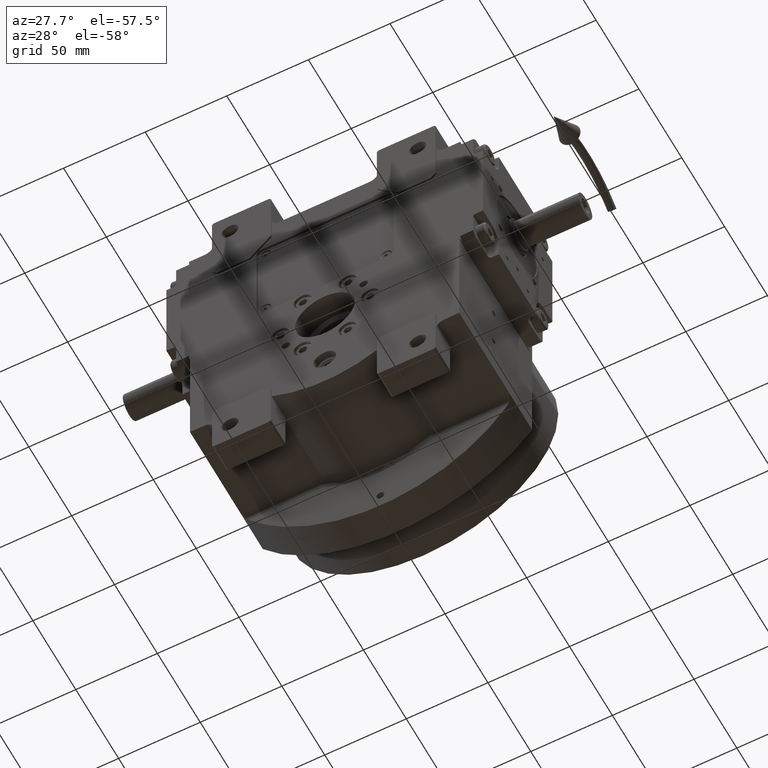
[diagram: clean part render]
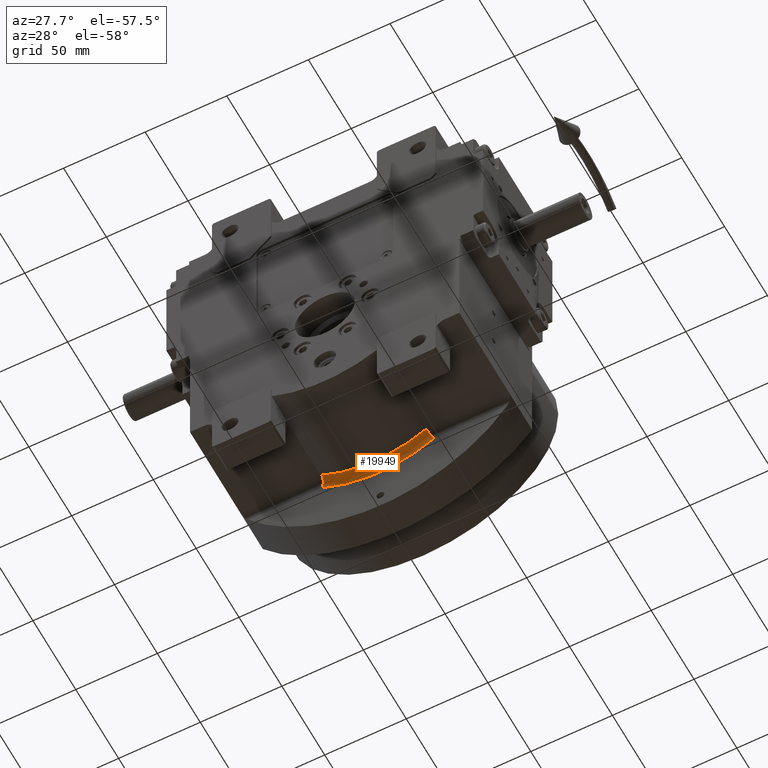
[diagram: same view with one face highlighted and labeled with its STEP entity id]
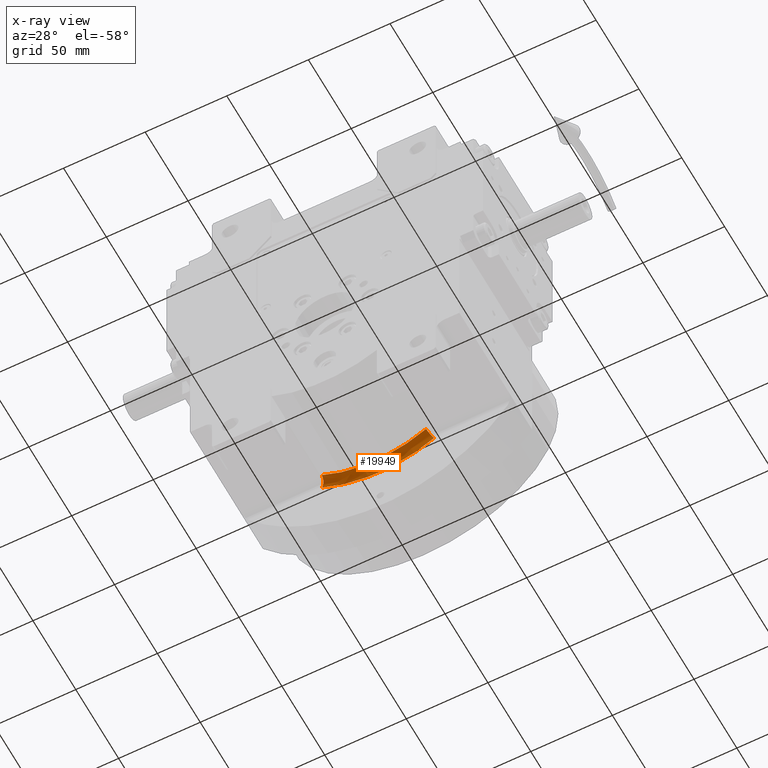
[diagram: x-ray of the same camera — body ghosted, the highlighted face saturated]
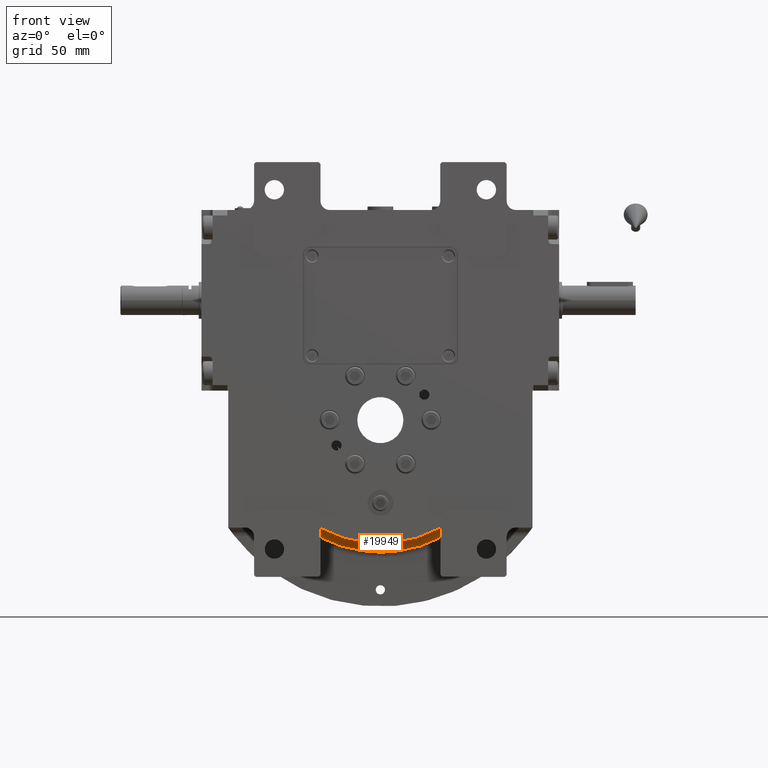
[diagram: same view with one face highlighted and labeled with its STEP entity id]
A machine part, auxiliary view. The second image highlights one B-rep face of the part: STEP entity #19949.
The next image is the same camera in x-ray: the body ghosted, the highlighted face saturated — about 0% of this face is hidden behind the body in this view.
A second angle (front view) of the same face is appended — the face is thin or edge-on in the first view.
In plain terms, the highlighted face is a freeform B-spline surface patch.
Its self-contained STEP definition (entity closure, byte-faithful):
#46 = CARTESIAN_POINT ( 'NONE',  ( 33.89316598205211761, 21.72079560458065117, -61.95847620662187438 ) ) ;
#188 = CARTESIAN_POINT ( 'NONE',  ( 25.60877324666465071, 22.27561228193904697, -67.13024366902838835 ) ) ;
#257 = EDGE_LOOP ( 'NONE', ( #39022, #22823, #12857, #63094 ) ) ;
#395 = CARTESIAN_POINT ( 'NONE',  ( 32.72256152614408364, 20.25982518854230108, -59.93185774238567376 ) ) ;
#1582 = CARTESIAN_POINT ( 'NONE',  ( -5.356016771387229980, 22.67353917850849854, -71.68136855480990732 ) ) ;
#2148 = VERTEX_POINT ( 'NONE', #54044 ) ;
#3142 = CARTESIAN_POINT ( 'NONE',  ( 15.47723018580565046, 22.20135186317695286, -68.51182380416469186 ) ) ;
#3487 = CARTESIAN_POINT ( 'NONE',  ( -33.58176427588125534, 21.56462997241844803, -61.39902517405529636 ) ) ;
#3790 = EDGE_CURVE ( 'NONE', #56593, #30874, #62354, .T. ) ;
#4337 = CARTESIAN_POINT ( 'NONE',  ( 23.47303169947996793, 22.32516175910221179, -67.69612524278177546 ) ) ;
#4667 = CARTESIAN_POINT ( 'NONE',  ( 33.43345245199208904, 21.34838968287522221, -61.14495112640866381 ) ) ;
#4810 = CARTESIAN_POINT ( 'NONE',  ( -14.78875358798659789, 18.38516779463245143, -65.59621327763490228 ) ) ;
#5020 = CARTESIAN_POINT ( 'NONE',  ( 32.20253065353806221, 18.66693435054510886, -59.11412820604594032 ) ) ;
#5039 = CARTESIAN_POINT ( 'NONE',  ( 29.04086476617816714, 22.13437532320985923, -65.51542630187469740 ) ) ;
#5148 = CARTESIAN_POINT ( 'NONE',  ( 23.94370797182140009, 18.94735996923695254, -63.03005720894730501 ) ) ;
#5367 = CARTESIAN_POINT ( 'NONE',  ( 33.34968649446624056, 21.25690745240459378, -60.99867444786077186 ) ) ;
#5510 = CARTESIAN_POINT ( 'NONE',  ( 5.080498079819370183, 21.43171770608825000, -68.64619728877529781 ) ) ;
#6939 = CARTESIAN_POINT ( 'NONE',  ( 31.98743443817719623, 16.91834202203235193, -58.87106939620260704 ) ) ;
#7422 = CARTESIAN_POINT ( 'NONE',  ( -32.01794541995315058, 17.75200655075800782, -58.85445774190699098 ) ) ;
#8113 = FACE_OUTER_BOUND ( 'NONE', #257, .T. ) ;
#8443 = CARTESIAN_POINT ( 'NONE',  ( -5.232313598796380028, 22.33856116847615070, -70.04518290873480169 ) ) ;
#8794 = CARTESIAN_POINT ( 'NONE',  ( -25.04405692028204911, 21.93979951944659845, -65.58923440282170247 ) ) ;
#9150 = CARTESIAN_POINT ( 'NONE',  ( -5.122250627365549924, 21.43143416067259821, -68.64309445080189676 ) ) ;
#9621 = CARTESIAN_POINT ( 'NONE',  ( 33.49596927411045044, 21.41148316958645736, -61.25452229406503335 ) ) ;
#9638 = CARTESIAN_POINT ( 'NONE',  ( -11.90248989745663444, 22.58241322724574474, -70.63652297862456919 ) ) ;
#10018 = B_SPLINE_CURVE_WITH_KNOTS ( 'NONE', 3,
 ( #56036, #7422, #61699, #13106, #34723, #56389, #29382, #36813 ),
 .UNSPECIFIED., .F., .F.,
 ( 4, 2, 2, 4 ),
 ( 0.000000000000000000, 0.3333333333333335924, 0.6666666666666671848, 1.000000000000000000 ),
 .UNSPECIFIED. ) ;
#10493 = CARTESIAN_POINT ( 'NONE',  ( -31.28692157794700535, 21.96561102192774939, -63.56940012490900926 ) ) ;
#10704 = CARTESIAN_POINT ( 'NONE',  ( 32.21062267453432071, 18.70415746839778848, -59.12576714756355756 ) ) ;
#10836 = CARTESIAN_POINT ( 'NONE',  ( -14.77288166437734063, 17.55090800214700053, -65.59925740921940474 ) ) ;
#11884 = CARTESIAN_POINT ( 'NONE',  ( 15.84304983925120069, 22.53627425432280162, -70.11133706324248749 ) ) ;
#12631 = CARTESIAN_POINT ( 'NONE',  ( 4.939540285032240519, 17.68847108994751594, -67.06237765336878454 ) ) ;
#12857 = ORIENTED_EDGE ( 'NONE', *, *, #54115, .F. ) ;
#12964 = CARTESIAN_POINT ( 'NONE',  ( -14.77288173921127701, 17.55091193554919471, -65.59925739486833152 ) ) ;
#13092 = CARTESIAN_POINT ( 'NONE',  ( 4.939540259446429715, 17.68846715588675167, -67.06237765273100138 ) ) ;
#13106 = CARTESIAN_POINT ( 'NONE',  ( -32.58211291903631945, 20.03721089980311731, -59.69284975760209733 ) ) ;
#13803 = CARTESIAN_POINT ( 'NONE',  ( 32.58211394110570325, 20.03721122118130182, -59.69285158621150345 ) ) ;
#14134 = CARTESIAN_POINT ( 'NONE',  ( 29.99084088730355191, 20.16771084712490136, -61.10706471000440132 ) ) ;
#14489 = CARTESIAN_POINT ( 'NONE',  ( -29.48146737460379896, 17.88159068325219891, -60.23419211705630261 ) ) ;
#15304 = CARTESIAN_POINT ( 'NONE',  ( 33.85713766137644853, 21.69930227409577128, -61.89403531663299418 ) ) ;
#15667 = CARTESIAN_POINT ( 'NONE',  ( 33.55919131906695441, 21.47314760397791389, -61.36548467847053701 ) ) ;
#15798 = CARTESIAN_POINT ( 'NONE',  ( 29.46960603675275081, 17.88219718071835018, -60.24064871479900773 ) ) ;
#16014 = CARTESIAN_POINT ( 'NONE',  ( 33.49901502991529156, 21.41446307854819153, -61.25986731557330245 ) ) ;
#16106 = EDGE_CURVE ( 'NONE', #2148, #56174, #62728, .T. ) ;
#16152 = CARTESIAN_POINT ( 'NONE',  ( 32.87977152734590192, 20.65830054632354873, -60.18633690520509560 ) ) ;
#16352 = CARTESIAN_POINT ( 'NONE',  ( 33.92535459463461223, 21.73912870223322003, -62.01611895463970825 ) ) ;
#16706 = CARTESIAN_POINT ( 'NONE',  ( 33.46693639570202805, 21.38264226011981961, -61.20360356247892497 ) ) ;
#16845 = CARTESIAN_POINT ( 'NONE',  ( 5.312359062531579745, 22.67382314555505118, -71.68461723454409196 ) ) ;
#17080 = CARTESIAN_POINT ( 'NONE',  ( -34.37448426114839606, 21.89931762037159757, -62.82870446426660749 ) ) ;
#18409 = CARTESIAN_POINT ( 'NONE',  ( 29.44072192283740108, 17.04841846181794907, -60.25462858127929877 ) ) ;
#19097 = CARTESIAN_POINT ( 'NONE',  ( 25.01775090583850059, 21.94079065737765077, -65.60031027760419420 ) ) ;
#19445 = CARTESIAN_POINT ( 'NONE',  ( 15.01361162066794996, 20.67284306709315089, -66.58199389556790493 ) ) ;
#19778 = CARTESIAN_POINT ( 'NONE',  ( 25.31111222606615030, 22.21174957585860099, -66.35048536335919778 ) ) ;
#19949 = ADVANCED_FACE ( 'NONE', ( #8113 ), #53821, .F. ) ;
#20618 = CARTESIAN_POINT ( 'NONE',  ( 32.64949430569751598, 20.09837154108942769, -59.81145617187603847 ) ) ;
#21101 = CARTESIAN_POINT ( 'NONE',  ( -32.14775138503180330, 18.57243314828215119, -59.02158094560640222 ) ) ;
#21190 = EDGE_CURVE ( 'NONE', #56174, #30874, #10018, .T. ) ;
#21448 = CARTESIAN_POINT ( 'NONE',  ( 5.189664148516230924, 22.33884502181484777, -70.04835568725430051 ) ) ;
#21666 = CARTESIAN_POINT ( 'NONE',  ( 33.73119429049442175, 21.61395435852485747, -61.66965452720889118 ) ) ;
#21808 = CARTESIAN_POINT ( 'NONE',  ( -15.88574857046580036, 22.53542943301765078, -70.10167552148800496 ) ) ;
#22006 = CARTESIAN_POINT ( 'NONE',  ( 32.02311471396220810, 17.52935285823654965, -58.88333062413673957 ) ) ;
#22142 = CARTESIAN_POINT ( 'NONE',  ( -31.65484861374630299, 22.02945599755280170, -64.31643460213680896 ) ) ;
#22823 = ORIENTED_EDGE ( 'NONE', *, *, #3790, .F. ) ;
#24737 = CARTESIAN_POINT ( 'NONE',  ( 23.84535878138364851, 18.12659505959519990, -62.84284412317220614 ) ) ;
#25096 = CARTESIAN_POINT ( 'NONE',  ( 33.58176531939849241, 21.56463036862644600, -61.39902706031460156 ) ) ;
#25917 = CARTESIAN_POINT ( 'NONE',  ( 32.28007184173921473, 19.01449822969751580, -59.22643570895439780 ) ) ;
#26283 = CARTESIAN_POINT ( 'NONE',  ( 32.35433031463118425, 19.28630331395154229, -59.33910833681502339 ) ) ;
#26416 = CARTESIAN_POINT ( 'NONE',  ( -25.33772548572940053, 22.21075815114509666, -66.33927685919370276 ) ) ;
#26611 = CARTESIAN_POINT ( 'NONE',  ( 33.76859029514489663, 21.64106143382714009, -61.73612088267417874 ) ) ;
#26630 = CARTESIAN_POINT ( 'NONE',  ( 20.63116238637816835, 22.40509573647655372, -68.60977478493825288 ) ) ;
#26753 = CARTESIAN_POINT ( 'NONE',  ( 14.81049246554406018, 19.20702028404180339, -65.80666838281179309 ) ) ;
#26975 = CARTESIAN_POINT ( 'NONE',  ( 32.08080791320756475, 17.98764634065216939, -58.94941265465860880 ) ) ;
#27114 = CARTESIAN_POINT ( 'NONE',  ( -30.00290205058615101, 20.16710264854260259, -61.10047760549640117 ) ) ;
#27843 = CARTESIAN_POINT ( 'NONE',  ( -4.980135495433235526, 17.68818881517152874, -67.05937529452785384 ) ) ;
#28553 = CARTESIAN_POINT ( 'NONE',  ( 29.44072205902208239, 17.04842239295195228, -60.25462851536783404 ) ) ;
#29133 = CARTESIAN_POINT ( 'NONE',  ( -34.37448426114839606, 21.89931762037159757, -62.82870446426660749 ) ) ;
#29382 = CARTESIAN_POINT ( 'NONE',  ( -33.97495222781908808, 21.83547720471467812, -62.09897149216929790 ) ) ;
#29725 = CARTESIAN_POINT ( 'NONE',  ( 31.98734971697150087, 16.91834084366389845, -58.87108418469269822 ) ) ;
#30051 = CARTESIAN_POINT ( 'NONE',  ( 24.49311927717645077, 21.03408714449059858, -64.29591374703228723 ) ) ;
#30413 = CARTESIAN_POINT ( 'NONE',  ( 30.91223167887569900, 21.69533666644165137, -62.85889895672319483 ) ) ;
#30764 = CARTESIAN_POINT ( 'NONE',  ( -5.293759152372389032, 22.60964664401005209, -70.84867779253190179 ) ) ;
#30874 = VERTEX_POINT ( 'NONE', #29133 ) ;
#30907 = CARTESIAN_POINT ( 'NONE',  ( -5.969118748666172536, 22.64733676919941985, -71.37860245883551613 ) ) ;
#31593 = CARTESIAN_POINT ( 'NONE',  ( 32.53370187337065289, 19.81285199359001936, -59.62319584522479943 ) ) ;
#31956 = CARTESIAN_POINT ( 'NONE',  ( 33.48383523637958348, 21.39952481451699740, -61.23323436435543243 ) ) ;
#32094 = CARTESIAN_POINT ( 'NONE',  ( -32.01794543039404317, 17.75200655022460339, -58.85445773622760157 ) ) ;
#32299 = CARTESIAN_POINT ( 'NONE',  ( 32.21505596508978897, 18.72422514810597960, -59.13217146334259411 ) ) ;
#32318 = CARTESIAN_POINT ( 'NONE',  ( -31.74689637493835548, 22.02422287345092755, -64.25637803985283369 ) ) ;
#32446 = CARTESIAN_POINT ( 'NONE',  ( -24.29570833834564780, 20.41175221617285018, -63.75167992997710087 ) ) ;
#33377 = CARTESIAN_POINT ( 'NONE',  ( -20.63116937147355046, 22.40509959465580891, -68.60981888412888452 ) ) ;
#34723 = CARTESIAN_POINT ( 'NONE',  ( -32.87977049551408726, 20.65830019473531820, -60.18633506172589165 ) ) ;
#35421 = CARTESIAN_POINT ( 'NONE',  ( -31.98734872618995340, 16.91834067345600090, -58.87108237431030489 ) ) ;
#35752 = CARTESIAN_POINT ( 'NONE',  ( 30.26533976592959974, 20.78888421055715341, -61.61440901042910667 ) ) ;
#36110 = CARTESIAN_POINT ( 'NONE',  ( -5.006512162622009932, 19.34373233567044892, -67.26863427106378879 ) ) ;
#36262 = CARTESIAN_POINT ( 'NONE',  ( 14.83576610642443683, 22.53395076200965974, -70.08259446625528710 ) ) ;
#36813 = CARTESIAN_POINT ( 'NONE',  ( -34.37448426114839606, 21.89931762037159757, -62.82870446426660749 ) ) ;
#37293 = CARTESIAN_POINT ( 'NONE',  ( 33.82720233730306347, 21.68015116134838749, -61.84060092327543146 ) ) ;
#37438 = CARTESIAN_POINT ( 'NONE',  ( 15.15200614646964894, 21.29437547240680217, -67.14350210244010952 ) ) ;
#37655 = CARTESIAN_POINT ( 'NONE',  ( 33.91934743153302634, 21.73576831729242897, -62.00535665183546286 ) ) ;
#37791 = CARTESIAN_POINT ( 'NONE',  ( 4.965702433001919935, 19.34401517241849788, -67.27165907835350822 ) ) ;
#37989 = CARTESIAN_POINT ( 'NONE',  ( 32.74046267663956655, 20.29774043094684899, -59.96149064735983814 ) ) ;
#38007 = CARTESIAN_POINT ( 'NONE',  ( -29.04105011325574992, 22.13437318037911794, -65.51540180920734713 ) ) ;
#38332 = CARTESIAN_POINT ( 'NONE',  ( 32.73328586040518928, 20.28259200613085511, -59.94960616786701735 ) ) ;
#38479 = CARTESIAN_POINT ( 'NONE',  ( -34.37448426115155087, 21.89931358665204897, -62.82870481713079158 ) ) ;
#39022 = ORIENTED_EDGE ( 'NONE', *, *, #21190, .T. ) ;
#39210 = CARTESIAN_POINT ( 'NONE',  ( -29.45257542784745652, 17.04781651606748127, -60.24818422784169769 ) ) ;
#40050 = CARTESIAN_POINT ( 'NONE',  ( 23.82086320050884964, 17.29258541188589859, -62.85166118683000036 ) ) ;
#40746 = CARTESIAN_POINT ( 'NONE',  ( -24.51887821482065277, 21.03309696621295188, -64.28508042708929793 ) ) ;
#41105 = CARTESIAN_POINT ( 'NONE',  ( -30.27750872055215225, 20.78827554963325142, -61.60775735980099910 ) ) ;
#41240 = CARTESIAN_POINT ( 'NONE',  ( 5.969130634977448224, 22.64734071920593195, -71.37864760761658545 ) ) ;
#41433 = CARTESIAN_POINT ( 'NONE',  ( 15.65889487797699964, 22.47239232837635114, -69.29690724126749046 ) ) ;
#42274 = CARTESIAN_POINT ( 'NONE',  ( 34.22504648665845650, 21.87552267231701464, -62.55672696553510548 ) ) ;
#42615 = CARTESIAN_POINT ( 'NONE',  ( 32.84356451004986610, 20.51291761275329151, -60.13242002078200699 ) ) ;
#42759 = CARTESIAN_POINT ( 'NONE',  ( 34.37448425976209876, 21.89931667216864852, -62.82870454466170429 ) ) ;
#42765 = CARTESIAN_POINT ( 'NONE',  ( -15.19284511144029892, 21.29353192454400201, -67.13427375725019886 ) ) ;
#42976 = CARTESIAN_POINT ( 'NONE',  ( 34.07635742203913765, 21.82262469278764527, -62.28672716919844987 ) ) ;
#43115 = CARTESIAN_POINT ( 'NONE',  ( -4.980135469638319989, 17.68818488111210030, -67.05937529392119245 ) ) ;
#43332 = CARTESIAN_POINT ( 'NONE',  ( 33.90884330140355729, 21.72980709277304356, -61.98654436986177529 ) ) ;
#43842 = CARTESIAN_POINT ( 'NONE',  ( 23.82086331600217122, 17.29258934410870197, -62.85166114526040104 ) ) ;
#44198 = CARTESIAN_POINT ( 'NONE',  ( 14.73316218924969867, 17.55175164572757396, -65.60818880316627144 ) ) ;
#44394 = CARTESIAN_POINT ( 'NONE',  ( -23.47284083894535911, 22.32516390193326572, -67.69614973545274950 ) ) ;
#46393 = CARTESIAN_POINT ( 'NONE',  ( 14.74899353304840055, 18.38600836025720042, -65.60516387452921094 ) ) ;
#46750 = CARTESIAN_POINT ( 'NONE',  ( -23.96890041528294901, 18.94637199954769713, -63.01949236013039268 ) ) ;
#48052 = CARTESIAN_POINT ( 'NONE',  ( -23.84593569003270019, 17.29159919360714781, -62.84117147466660924 ) ) ;
#48265 = CARTESIAN_POINT ( 'NONE',  ( 32.14281245953367971, 18.36695712941077119, -59.03041155637551185 ) ) ;
#48268 = B_SPLINE_CURVE_WITH_KNOTS ( 'NONE', 3,
 ( #69209, #59312, #22006, #26975, #48981, #48265, #69550, #58958, #5020, #10704, #32299, #25917, #26283, #64946, #31593, #65279, #20618, #63893, #395, #38332, #37989, #69899, #42615, #58604, #64593, #64249, #53945, #5367, #52890, #4667, #16706, #31956, #48625, #9621, #16014, #15667, #53609, #21666, #26611, #37293, #15304, #46, #43332, #37655, #16352, #42976, #42274, #59646 ),
 .UNSPECIFIED., .F., .F.,
 ( 4, 2, 2, 1, 1, 2, 2, 2, 2, 1, 1, 1, 2, 2, 2, 2, 2, 1, 1, 1, 2, 2, 2, 2, 1, 1, 2, 2, 4 ),
 ( 0.000000000000000000, 0.1249999999999205635, 0.1874999999998815392, 0.2187499999998619438, 0.2343749999998528122, 0.2421874999998485933, 0.2499999999998444022, 0.3749999999997710165, 0.4374999999997347122, 0.4687499999997153388, 0.4843749999997056244, 0.4921874999997002398, 0.4960937499996980748, 0.4999999999996959099, 0.6249999999996843636, 0.6874999999996797007, 0.7187499999996763700, 0.7343749999996745936, 0.7421874999996742606, 0.7460937499996737055, 0.7480468749996734834, 0.7499999999996732614, 0.8124999999997548628, 0.8437499999997970512, 0.8593749999998184785, 0.8671874999998295808, 0.8710937499998353539, 0.8749999999998410161, 1.000000000000000000 ),
 .UNSPECIFIED. ) ;
#48289 = CARTESIAN_POINT ( 'NONE',  ( 11.90248994995745058, 22.58240927723912250, -70.63647782984223511 ) ) ;
#48417 = CARTESIAN_POINT ( 'NONE',  ( 24.27018054425809979, 20.41274173681960136, -63.76240717643119638 ) ) ;
#48625 = CARTESIAN_POINT ( 'NONE',  ( 33.49111118290952760, 21.40670698740588307, -61.24599844153117800 ) ) ;
#48981 = CARTESIAN_POINT ( 'NONE',  ( 32.10350489515772665, 18.14000914207347748, -58.97787707114111555 ) ) ;
#49821 = CARTESIAN_POINT ( 'NONE',  ( -33.97495223888379456, 21.83547720417900351, -62.09897148611660356 ) ) ;
#51705 = CARTESIAN_POINT ( 'NONE',  ( -15.05407910445714847, 20.67200015654930212, -66.57285659245719955 ) ) ;
#52062 = CARTESIAN_POINT ( 'NONE',  ( -30.92465710468345108, 21.69472733084185023, -62.85209919801850020 ) ) ;
#52890 = CARTESIAN_POINT ( 'NONE',  ( 33.40529059927756350, 21.31822588542240382, -61.09572500218396840 ) ) ;
#53399 = CARTESIAN_POINT ( 'NONE',  ( -15.70109730716845142, 22.47154757257565194, -69.28735807076829190 ) ) ;
#53609 = CARTESIAN_POINT ( 'NONE',  ( 33.62399696553287498, 21.53086136857003652, -61.47963672372196697 ) ) ;
#53738 = CARTESIAN_POINT ( 'NONE',  ( -29.45257529162520171, 17.04781258493639839, -60.24818429381119955 ) ) ;
#53821 = B_SPLINE_SURFACE_WITH_KNOTS ( 'NONE', 3, 3, ( 
 ( #29725, #18409, #40050, #61688, #13092, #43115, #10836, #48052, #53738, #35421 ),
 ( #59441, #15798, #24737, #46393, #64738, #69683, #4810, #68036, #14489, #32094 ),
 ( #63071, #70041, #5148, #26753, #37791, #36110, #57411, #46750, #57768, #21101 ),
 ( #13803, #14134, #48417, #19445, #54095, #57068, #51705, #32446, #27114, #62381 ),
 ( #16152, #35752, #30051, #37438, #5510, #9150, #42765, #40746, #41105, #67690 ),
 ( #25096, #30413, #19097, #3142, #21448, #8443, #62733, #8794, #52062, #3487 ),
 ( #59100, #68374, #19778, #41433, #64385, #30764, #53399, #26416, #10493, #49821 ),
 ( #65781, #60839, #188, #11884, #16845, #1582, #21808, #55509, #22142, #38479 ) ),
 .UNSPECIFIED., .F., .F., .F.,
 ( 4, 2, 2, 4 ),
 ( 4, 1, 1, 1, 1, 1, 1, 4 ),
 ( -5.349090900439799999E-08, 0.4980493630235890423, 0.9960987795380870091, 1.494148196052583977 ),
 ( 0.01506064934118959975, 0.1415550613721850148, 0.2844104620619999912, 0.4280550938335154765, 0.5719436702722410226, 0.7155885140798790012, 0.8584443337168500276, 0.9843486904440090779 ),
 .UNSPECIFIED. ) ;
#53945 = CARTESIAN_POINT ( 'NONE',  ( 33.31357684144703057, 21.21470799708574617, -60.93584403762083213 ) ) ;
#54044 = CARTESIAN_POINT ( 'NONE',  ( 31.98743443817719623, 16.91834202203235193, -58.87106939620260704 ) ) ;
#54095 = CARTESIAN_POINT ( 'NONE',  ( 5.034010421367740129, 20.81008187498295214, -68.06983930150960305 ) ) ;
#54115 = EDGE_CURVE ( 'NONE', #2148, #56593, #48268, .T. ) ;
#55509 = CARTESIAN_POINT ( 'NONE',  ( -25.63569944676440215, 22.27462078963334946, -67.11890327536170275 ) ) ;
#55544 = CARTESIAN_POINT ( 'NONE',  ( -23.84593580562536630, 17.29160312582579095, -62.84117143299615549 ) ) ;
#56036 = CARTESIAN_POINT ( 'NONE',  ( -31.98743979880390498, 16.91834305889650025, -58.87107689861610282 ) ) ;
#56174 = VERTEX_POINT ( 'NONE', #63742 ) ;
#56389 = CARTESIAN_POINT ( 'NONE',  ( -33.58176426494383549, 21.56462997295396988, -61.39902518003657406 ) ) ;
#56593 = VERTEX_POINT ( 'NONE', #42759 ) ;
#57068 = CARTESIAN_POINT ( 'NONE',  ( -5.075381098711249983, 20.80979854058070089, -68.06676717787489395 ) ) ;
#57411 = CARTESIAN_POINT ( 'NONE',  ( -14.85041617654067991, 19.20617887655184930, -65.79767106539189570 ) ) ;
#57768 = CARTESIAN_POINT ( 'NONE',  ( -29.60169563607699672, 18.70212772068944673, -60.40819800351219726 ) ) ;
#57924 = CARTESIAN_POINT ( 'NONE',  ( -2.989791404646014783, 22.66357855640624308, -71.56424693609983478 ) ) ;
#58272 = CARTESIAN_POINT ( 'NONE',  ( 31.74721959813282979, 22.02420755821067999, -64.25620298585577927 ) ) ;
#58604 = CARTESIAN_POINT ( 'NONE',  ( 32.95368136968663464, 20.71200517943965025, -60.31722614015441764 ) ) ;
#58958 = CARTESIAN_POINT ( 'NONE',  ( 32.19055830556653319, 18.61102054775242465, -59.09698003137811639 ) ) ;
#59100 = CARTESIAN_POINT ( 'NONE',  ( 33.97495329477499837, 21.83547761356124894, -62.09897339379189418 ) ) ;
#59312 = CARTESIAN_POINT ( 'NONE',  ( 31.99852157932058105, 17.22226205638403229, -58.86505566043709337 ) ) ;
#59441 = CARTESIAN_POINT ( 'NONE',  ( 32.01794642272439262, 17.75200676098285157, -58.85445954576479721 ) ) ;
#59646 = CARTESIAN_POINT ( 'NONE',  ( 34.37448425976209876, 21.89931667216864852, -62.82870454466170429 ) ) ;
#60839 = CARTESIAN_POINT ( 'NONE',  ( 31.64213078674164947, 22.03006558229255418, -64.32339653252410017 ) ) ;
#61688 = CARTESIAN_POINT ( 'NONE',  ( 14.73316211460674019, 17.55174771232135100, -65.60818881742689257 ) ) ;
#61699 = CARTESIAN_POINT ( 'NONE',  ( -32.14775137455149689, 18.57243314881601393, -59.02158095131412807 ) ) ;
#62354 = B_SPLINE_CURVE_WITH_KNOTS ( 'NONE', 3,
 ( #69571, #58272, #5039, #4337, #26630, #36262, #48289, #41240, #62867, #57924, #30907, #9638, #64614, #33377, #44394, #38007, #32318, #17080 ),
 .UNSPECIFIED., .F., .F.,
 ( 4, 2, 2, 2, 2, 2, 2, 2, 4 ),
 ( 0.000000000000000000, 0.1250000000000000000, 0.2500000000000000000, 0.3750000000000000000, 0.5000000000000000000, 0.6250000000000000000, 0.7500000000000000000, 0.8750000000000000000, 1.000000000000000000 ),
 .UNSPECIFIED. ) ;
#62381 = CARTESIAN_POINT ( 'NONE',  ( -32.58211292965309980, 20.03721089926845167, -59.69284975180789843 ) ) ;
#62728 = B_SPLINE_CURVE_WITH_KNOTS ( 'NONE', 3,
 ( #6939, #28553, #43842, #44198, #12631, #27843, #12964, #55544, #39210, #66853 ),
 .UNSPECIFIED., .F., .F.,
 ( 4, 1, 1, 1, 1, 1, 1, 4 ),
 ( 0.000000000000000000, 0.1305023962609451471, 0.2778841802425977558, 0.4260802021475848522, 0.5745278981235040217, 0.7227241387829929087, 0.8701063549861712820, 1.000000000000000000 ),
 .UNSPECIFIED. ) ;
#62733 = CARTESIAN_POINT ( 'NONE',  ( -15.51894356669414954, 22.20050738530104795, -68.50238787699559850 ) ) ;
#62867 = CARTESIAN_POINT ( 'NONE',  ( 2.989797780335714528, 22.66357457562292410, -71.56420143553830826 ) ) ;
#63071 = CARTESIAN_POINT ( 'NONE',  ( 32.14775238197429985, 18.57243339894680290, -59.02158275995419956 ) ) ;
#63094 = ORIENTED_EDGE ( 'NONE', *, *, #16106, .T. ) ;
#63742 = CARTESIAN_POINT ( 'NONE',  ( -31.98743979880390498, 16.91834305889650025, -58.87107689861610282 ) ) ;
#63893 = CARTESIAN_POINT ( 'NONE',  ( 32.69782428689194376, 20.20639863448462492, -59.89099290944819387 ) ) ;
#64249 = CARTESIAN_POINT ( 'NONE',  ( 33.20812734061839677, 21.08478091162955792, -60.75296467484636764 ) ) ;
#64385 = CARTESIAN_POINT ( 'NONE',  ( 5.250608913103330444, 22.60993058936840328, -70.85188868654628891 ) ) ;
#64593 = CARTESIAN_POINT ( 'NONE',  ( 33.14167064679252661, 20.99373569009000207, -60.63854115864183569 ) ) ;
#64614 = CARTESIAN_POINT ( 'NONE',  ( -14.83574960765554707, 22.53394690383062127, -70.08255036706712815 ) ) ;
#64738 = CARTESIAN_POINT ( 'NONE',  ( 4.944966889311680269, 18.52286662855195232, -67.06251259139111198 ) ) ;
#64946 = CARTESIAN_POINT ( 'NONE',  ( 32.48629044923389841, 19.68265260997892696, -59.54728963544215503 ) ) ;
#65279 = CARTESIAN_POINT ( 'NONE',  ( 32.61002891604541531, 20.00390710677695338, -59.74704011465331632 ) ) ;
#65781 = CARTESIAN_POINT ( 'NONE',  ( 34.37448532946400093, 21.89931399913935195, -62.82870674722110493 ) ) ;
#66853 = CARTESIAN_POINT ( 'NONE',  ( -31.98743979880390498, 16.91834305889650025, -58.87107689861610282 ) ) ;
#67690 = CARTESIAN_POINT ( 'NONE',  ( -32.87977050622575348, 20.65830019420030084, -60.18633505587489907 ) ) ;
#68036 = CARTESIAN_POINT ( 'NONE',  ( -23.87045234341555044, 18.12560795860210305, -62.83233301949760374 ) ) ;
#68374 = CARTESIAN_POINT ( 'NONE',  ( 31.27435154526424910, 21.96622055914739846, -63.57628109349388978 ) ) ;
#69209 = CARTESIAN_POINT ( 'NONE',  ( 31.98743443817719623, 16.91834202203235193, -58.87106939620260704 ) ) ;
#69550 = CARTESIAN_POINT ( 'NONE',  ( 32.16378153835762532, 18.48003092852795604, -59.05913719526966332 ) ) ;
#69571 = CARTESIAN_POINT ( 'NONE',  ( 34.37448425976209876, 21.89931667216864852, -62.82870454466170429 ) ) ;
#69683 = CARTESIAN_POINT ( 'NONE',  ( -4.985606449715559663, 18.52258407054160116, -67.05950363468579667 ) ) ;
#69899 = CARTESIAN_POINT ( 'NONE',  ( 32.74468400485579167, 20.30659213609053992, -59.96848570823783575 ) ) ;
#70041 = CARTESIAN_POINT ( 'NONE',  ( 29.58978951225625309, 18.70273482888475058, -60.41468680097980126 ) ) ;